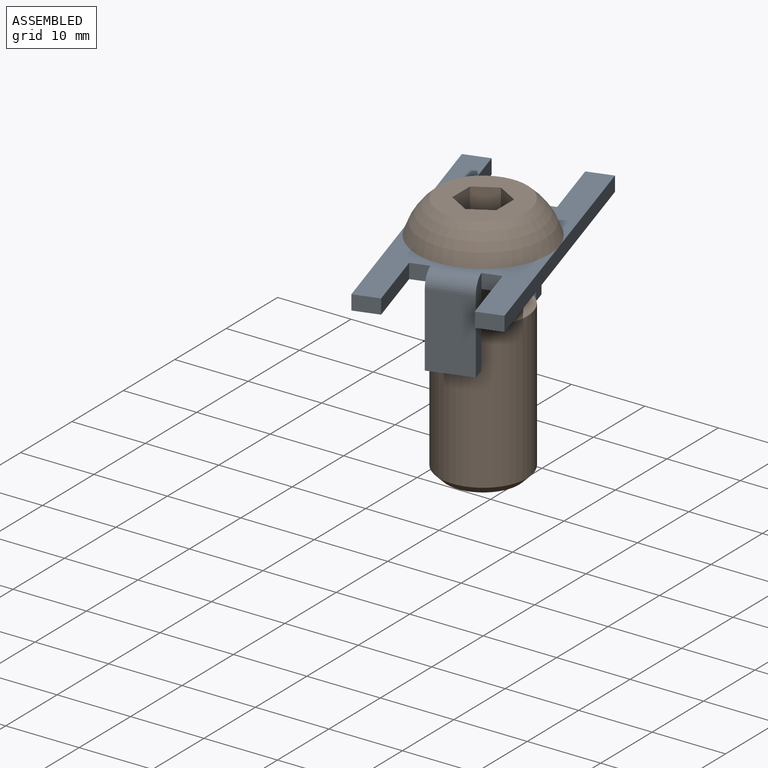
[diagram: assembled view]
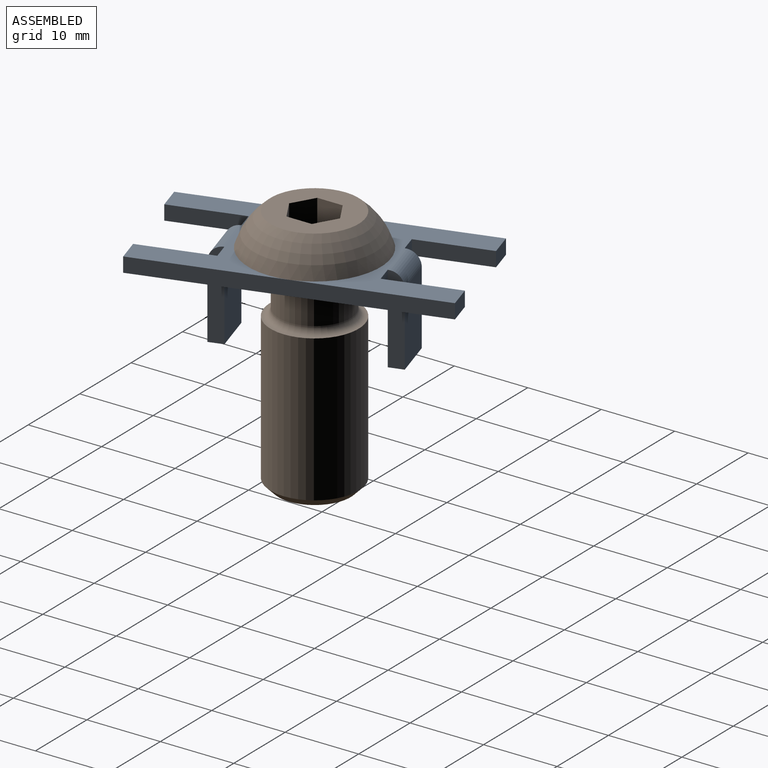
[diagram: assembled view, second angle]
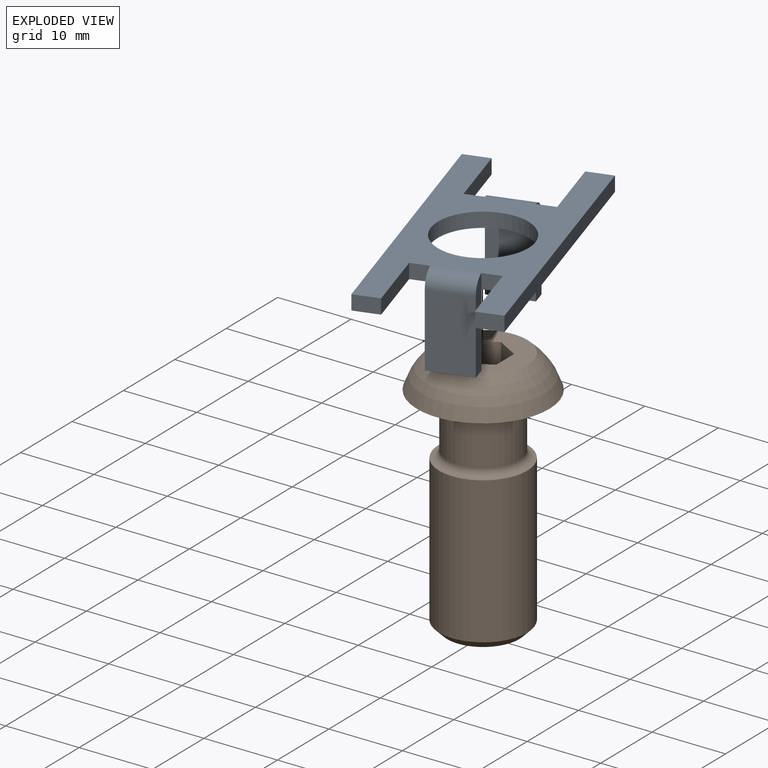
[diagram: exploded view]
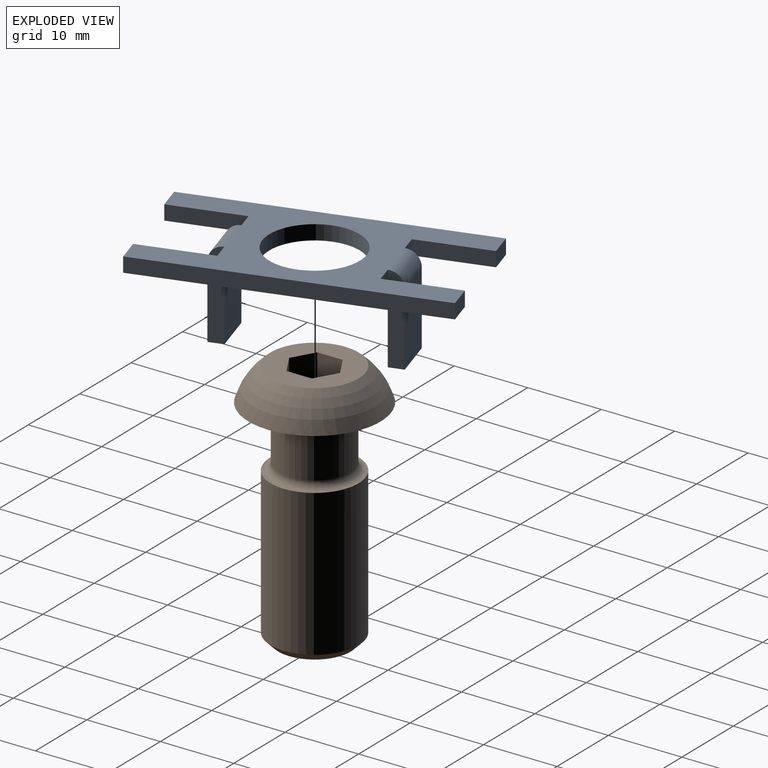
[diagram: exploded view, second angle]
ASSEMBLY  parts=2 mates=2
PART A: 29 faces, bbox 39x12x18 mm
  f0: plane 39x18mm, normal (0,-1,0), area 365.4mm2, adj f3,f4,f5,f6,f7,f9,f10,f13
  f1: plane 10x6mm, normal (-1,0,0), area 60mm2, adj f2,f11,f18,f19
  f2: plane 39x18mm, normal (0,1,0), area 365.4mm2, adj f1,f3,f4,f5,f6,f7,f8,f9
  f3: plane 2.5x2mm, normal (1,0,0), area 5mm2, adj f0,f2,f6,f18
  f4: plane 2.5x2mm, normal (-1,0,0), area 5mm2, adj f0,f2,f16,f20
  f5: plane 2.5x2mm, normal (1,0,0), area 5mm2, adj f0,f2,f7,f19
  f6: plane 9.9x2mm, normal (0,0,1), area 19.8mm2, adj f0,f2,f3,f24
  f7: plane 9.9x2mm, normal (0,0,-1), area 19.8mm2, adj f0,f2,f5,f25
  f8: plane 10x6mm, normal (1,0,0), area 60mm2, adj f2,f15,f16,f17
  f9: cylinder r=6.15mm len=12.3mm, axis (0,1,0), area 77.3mm2, adj f0,f2
  f10: cylinder r=2mm len=6mm, axis (0,0,1), area 18.8mm2, adj f0,f14,f16,f17
  f11: plane 6x2mm, normal (0,1,0), area 12mm2, adj f1,f12,f18,f19
  f12: plane 10x6mm, normal (1,0,0), area 60mm2, adj f11,f13,f18,f19
  f13: cylinder r=2mm len=6mm, axis (0,0,1), area 18.8mm2, adj f0,f12,f18,f19
  f14: plane 10x6mm, normal (-1,0,0), area 60mm2, adj f10,f15,f16,f17
  f15: plane 6x2mm, normal (0,1,0), area 12mm2, adj f8,f14,f16,f17
  f16: plane 12x2mm, normal (0,0,-1), area 23.1mm2, adj f4,f8,f10,f14,f15
  f17: plane 12x2mm, normal (0,0,1), area 23.1mm2, adj f8,f10,f14,f15,f21
  f18: plane 12x2mm, normal (0,0,-1), area 23.1mm2, adj f1,f3,f11,f12,f13
  f19: plane 12x2mm, normal (0,0,1), area 23.1mm2, adj f1,f5,f11,f12,f13
  f20: plane 9.9x2mm, normal (0,0,1), area 19.8mm2, adj f0,f2,f4,f22
  f21: plane 2.5x2mm, normal (-1,0,0), area 5mm2, adj f0,f2,f17,f28
  f22: plane 3.5x2mm, normal (-1,0,0), area 7mm2, adj f0,f2,f20,f23
  f23: plane 39x2mm, normal (0,0,-1), area 78mm2, adj f0,f2,f22,f24
  f24: plane 3.5x2mm, normal (1,0,0), area 7mm2, adj f0,f2,f6,f23
  f25: plane 3.5x2mm, normal (1,0,0), area 7mm2, adj f0,f2,f7,f26
  f26: plane 39x2mm, normal (0,0,1), area 78mm2, adj f0,f2,f25,f27
  f27: plane 3.5x2mm, normal (-1,0,0), area 7mm2, adj f0,f2,f26,f28
  f28: plane 9.9x2mm, normal (0,0,-1), area 19.8mm2, adj f0,f2,f21,f27
PART B: 23 faces, bbox 18x18x33.9 mm
  f0: plane 2.6x1.5mm, normal (0,0,1), area 0.5mm2, adj f15,f16,f19
  f1: plane 3x0.87mm, normal (0,0,1), area 0.5mm2, adj f14,f15,f19
  f2: plane 9.85x9.85mm, normal (0,0,-1), area 76.2mm2, adj f12
  f3: plane 2.6x1.5mm, normal (0,0,1), area 0.5mm2, adj f16,f17,f19
  f4: plane 12x12mm, normal (0,0,1), area 81.9mm2, adj f5,f13,f14,f15,f16,f17,f18
  f5: torus R=0.36mm, axis (0,0,-1), area 266.8mm2, adj f4,f6
  f6: plane 18x18mm, normal (0,0,-1), area 141.4mm2, adj f5,f7
  f7: cone r=6mm half-angle=45deg, axis (0,0,1), area 53.3mm2, adj f6,f8
  f8: cylinder r=4.9mm len=9.8mm, axis (0,0,1), area 194mm2, adj f7,f9
  f9: torus R=5.9mm, axis (0,0,-1), area 51.9mm2, adj f8,f10
  f10: plane 12x12mm, normal (0,0,1), area 3.7mm2, adj f9,f11
  f11: cylinder r=6mm len=19.93mm, axis (0,0,1), area 751.2mm2, adj f10,f12
  f12: cone r=6mm half-angle=45deg, axis (0,0,1), area 52.1mm2, adj f2,f11
  f13: plane 3.6x3.46mm, normal (1,0,0), area 12.5mm2, adj f4,f14,f18,f21,f22
  f14: plane 3.6x3mm, normal (0.5,0.87,0), area 12.5mm2, adj f1,f4,f13,f15,f22
  f15: plane 3.6x3mm, normal (-0.5,0.87,0), area 12.5mm2, adj f0,f1,f4,f14,f16
  f16: plane 3.6x3.46mm, normal (-1,0,0), area 12.5mm2, adj f0,f3,f4,f15,f17
  f17: plane 3.6x3mm, normal (-0.5,-0.87,0), area 12.5mm2, adj f3,f4,f16,f18,f20
  f18: plane 3.6x3mm, normal (0.5,-0.87,0), area 12.5mm2, adj f4,f13,f17,f20,f21
  f19: cone r=866.03mm half-angle=60deg, axis (0,0,1), area 32.6mm2, adj f0,f1,f3,f20,f21,f22
  f20: plane 3x0.87mm, normal (0,0,1), area 0.5mm2, adj f17,f18,f19
  f21: plane 2.6x1.5mm, normal (0,0,1), area 0.5mm2, adj f13,f18,f19
  f22: plane 2.6x1.5mm, normal (0,0,1), area 0.5mm2, adj f13,f14,f19
PLACE A rot(axis=(-0.69,0.51,-0.51),110.9deg) t=(0,0,0)mm
PLACE B at identity fixed
MATE cylindrical A.f9 <-> B.f7  axis (0,0,-1) through (0,0,-2)mm
MATE planar A.f9 <-> B.f5  axis (0,0,1) through (0,0,0)mm
